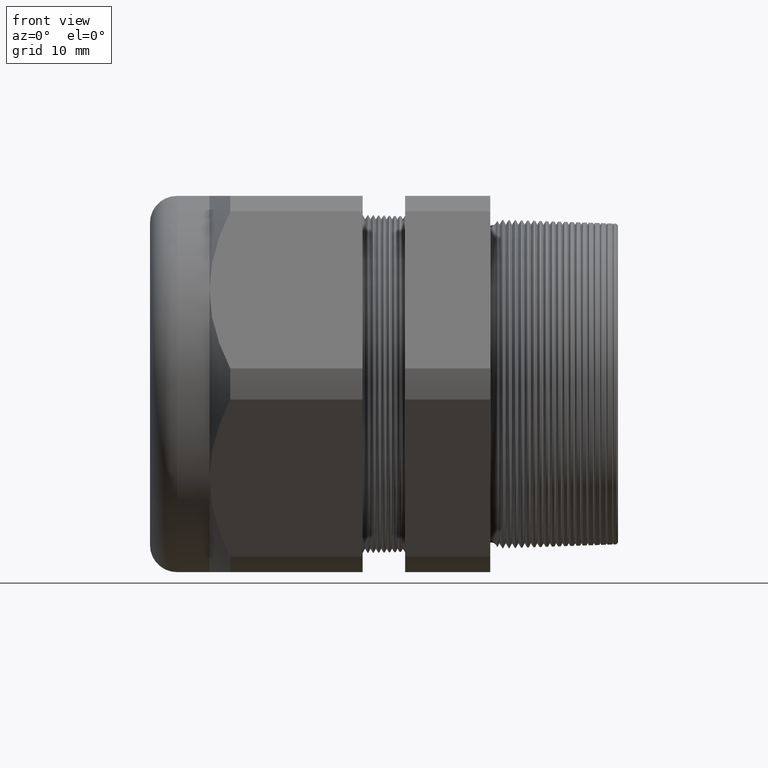
[diagram: clean part render]
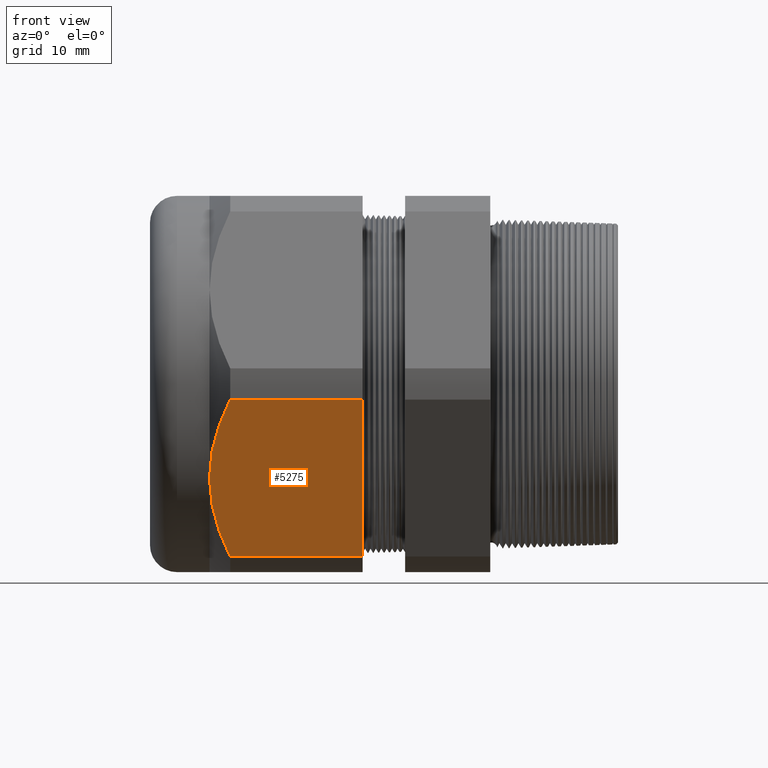
[diagram: same view with one face highlighted and labeled with its STEP entity id]
A machine part, front view. The second image highlights one B-rep face of the part: STEP entity #5275.
In plain terms, the highlighted planar face has unit normal (0, -0.866, -0.5).
Its self-contained STEP definition (entity closure, byte-faithful):
#2525 = CARTESIAN_POINT ( 'NONE',  ( -1.754341999999999600, -0.6532729870224186500, -0.9584979952648867700 ) ) ;
#2535 = CARTESIAN_POINT ( 'NONE',  ( -1.018802799999999600, -0.6532729870224186500, -0.9584979952648867700 ) ) ;
#2541 = CARTESIAN_POINT ( 'NONE',  ( -1.869292000000000000, -0.9049965469547379700, -0.5225000000000000800 ) ) ;
#2581 = DIRECTION ( 'NONE',  ( -1.000000000000000000, 0.0000000000000000000, 0.0000000000000000000 ) ) ;
#2582 = VECTOR ( 'NONE', #2581, 39.37007874015748100 ) ;
#2583 = CARTESIAN_POINT ( 'NONE',  ( 0.4000000000000000800, -0.6532729870224186500, -0.9584979952648867700 ) ) ;
#2584 = LINE ( 'NONE', #2583, #2582 ) ;
#2585 = CARTESIAN_POINT ( 'NONE',  ( -1.754341999999999600, -0.6532729870224186500, -0.9584979952648867700 ) ) ;
#2586 = CARTESIAN_POINT ( 'NONE',  ( -1.771743928187929500, -0.6733201437198451700, -0.9237753013176495100 ) ) ;
#2587 = CARTESIAN_POINT ( 'NONE',  ( -1.787722809093209100, -0.6936676680849169800, -0.8885323553090996900 ) ) ;
#2588 = CARTESIAN_POINT ( 'NONE',  ( -1.816049984818948200, -0.7349840752165904800, -0.8169702389708406500 ) ) ;
#2589 = CARTESIAN_POINT ( 'NONE',  ( -1.828286401335961900, -0.7557945758470283600, -0.7809253945479769400 ) ) ;
#2590 = CARTESIAN_POINT ( 'NONE',  ( -1.858295772310752900, -0.8187555438091959100, -0.6718737991437869800 ) ) ;
#2591 = CARTESIAN_POINT ( 'NONE',  ( -1.869291999999999700, -0.8614415502338412800, -0.5979394672440898600 ) ) ;
#2592 = CARTESIAN_POINT ( 'NONE',  ( -1.869292000000000000, -0.9049965469547379700, -0.5225000000000000800 ) ) ;
#2594 = B_SPLINE_CURVE_WITH_KNOTS ( 'NONE', 3,
 ( #2592, #2591, #2590, #2589, #2588, #2587, #2586, #2585 ),
 .UNSPECIFIED., .F., .F.,
 ( 4, 2, 2, 4 ),
 ( 0.01312468964301424400, 0.01968241065928899900, 0.02296127116742637000, 0.02624013167556374400 ),
 .UNSPECIFIED. ) ;
#2616 = PLANE ( 'NONE',  #2681 ) ;
#2617 = FACE_OUTER_BOUND ( 'NONE', #5247, .T. ) ;
#2622 = CARTESIAN_POINT ( 'NONE',  ( -1.869292000000000000, -0.9049965469547379700, -0.5225000000000000800 ) ) ;
#2623 = CARTESIAN_POINT ( 'NONE',  ( -1.869291999999999700, -0.9158927675541832500, -0.5036271923112838300 ) ) ;
#2624 = CARTESIAN_POINT ( 'NONE',  ( -1.868602443834754400, -0.9268886498704124200, -0.4845817654655262800 ) ) ;
#2625 = CARTESIAN_POINT ( 'NONE',  ( -1.865863667396530100, -0.9487354810206961600, -0.4467419439288565800 ) ) ;
#2626 = CARTESIAN_POINT ( 'NONE',  ( -1.863823402605175000, -0.9595753005800546900, -0.4279668257071683200 ) ) ;
#2627 = CARTESIAN_POINT ( 'NONE',  ( -1.855811452808126000, -0.9918591077759823000, -0.3720496313820638200 ) ) ;
#2628 = CARTESIAN_POINT ( 'NONE',  ( -1.847948022855567400, -1.013067370471513200, -0.3353158428531363100 ) ) ;
#2629 = CARTESIAN_POINT ( 'NONE',  ( -1.817835050397150100, -1.075879385687209500, -0.2265222411737607100 ) ) ;
#2630 = CARTESIAN_POINT ( 'NONE',  ( -1.789102837835436100, -1.116675351185548300, -0.1558615561868111100 ) ) ;
#2631 = CARTESIAN_POINT ( 'NONE',  ( -1.754341999999999600, -1.156720106887057800, -0.08650200473511345000 ) ) ;
#2634 = CARTESIAN_POINT ( 'NONE',  ( -1.754341999999999600, -1.156720106887057800, -0.08650200473511345000 ) ) ;
#2635 = B_SPLINE_CURVE_WITH_KNOTS ( 'NONE', 3,
 ( #2631, #2630, #2629, #2628, #2627, #2626, #2625, #2624, #2623, #2622 ),
 .UNSPECIFIED., .F., .F.,
 ( 4, 2, 2, 2, 4 ),
 ( 2.483246824922818200E-007, 0.006562468983848372700, 0.009843579313431308600, 0.01148413447822277700, 0.01312468964301424400 ),
 .UNSPECIFIED. ) ;
#2636 = DIRECTION ( 'NONE',  ( -1.000000000000000000, 0.0000000000000000000, 0.0000000000000000000 ) ) ;
#2637 = VECTOR ( 'NONE', #2636, 39.37007874015748100 ) ;
#2638 = CARTESIAN_POINT ( 'NONE',  ( 0.4000000000000000800, -1.156720106887057800, -0.08650200473511345000 ) ) ;
#2639 = LINE ( 'NONE', #2638, #2637 ) ;
#2648 = CARTESIAN_POINT ( 'NONE',  ( -1.018802799999999600, -1.156720106887057800, -0.08650200473511345000 ) ) ;
#2678 = DIRECTION ( 'NONE',  ( 0.0000000000000000000, 0.5000000000000002200, -0.8660254037844384900 ) ) ;
#2679 = DIRECTION ( 'NONE',  ( 0.0000000000000000000, -0.8660254037844386000, -0.5000000000000003300 ) ) ;
#2680 = CARTESIAN_POINT ( 'NONE',  ( 0.4000000000000000800, -0.6532729870224186500, -0.9584979952648867700 ) ) ;
#2681 = AXIS2_PLACEMENT_3D ( 'NONE', #2680, #2679, #2678 ) ;
#2801 = DIRECTION ( 'NONE',  ( 0.0000000000000000000, 0.5000000000000002200, -0.8660254037844383700 ) ) ;
#2802 = VECTOR ( 'NONE', #2801, 39.37007874015748100 ) ;
#2803 = CARTESIAN_POINT ( 'NONE',  ( -1.018802799999999600, -0.6699965469547378700, -0.9295319397786864200 ) ) ;
#2804 = LINE ( 'NONE', #2803, #2802 ) ;
#5221 = ORIENTED_EDGE ( 'NONE', *, *, #5261, .T. ) ;
#5224 = VERTEX_POINT ( 'NONE', #2541 ) ;
#5230 = VERTEX_POINT ( 'NONE', #2535 ) ;
#5233 = VERTEX_POINT ( 'NONE', #2525 ) ;
#5238 = EDGE_CURVE ( 'NONE', #5230, #5233, #2584, .T. ) ;
#5247 = EDGE_LOOP ( 'NONE', ( #5270, #5265, #5221, #5331, #5334 ) ) ;
#5261 = EDGE_CURVE ( 'NONE', #5224, #5233, #2594, .T. ) ;
#5265 = ORIENTED_EDGE ( 'NONE', *, *, #5268, .T. ) ;
#5266 = VERTEX_POINT ( 'NONE', #2648 ) ;
#5267 = EDGE_CURVE ( 'NONE', #5266, #5269, #2639, .T. ) ;
#5268 = EDGE_CURVE ( 'NONE', #5269, #5224, #2635, .T. ) ;
#5269 = VERTEX_POINT ( 'NONE', #2634 ) ;
#5270 = ORIENTED_EDGE ( 'NONE', *, *, #5267, .T. ) ;
#5275 = ADVANCED_FACE ( 'NONE', ( #2617 ), #2616, .T. ) ;
#5331 = ORIENTED_EDGE ( 'NONE', *, *, #5238, .F. ) ;
#5332 = EDGE_CURVE ( 'NONE', #5266, #5230, #2804, .T. ) ;
#5334 = ORIENTED_EDGE ( 'NONE', *, *, #5332, .F. ) ;